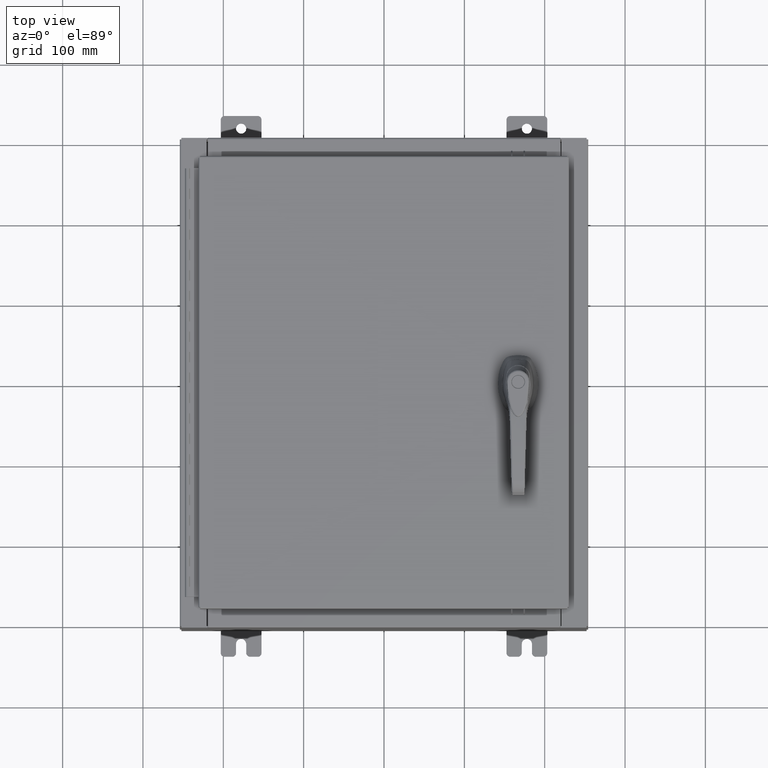
[diagram: clean part render]
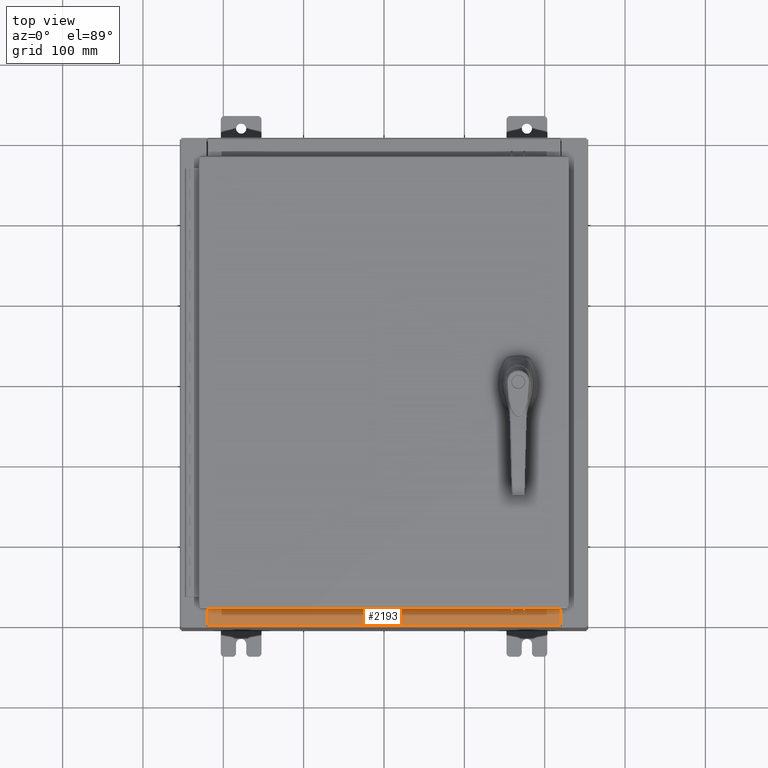
[diagram: same view with one face highlighted and labeled with its STEP entity id]
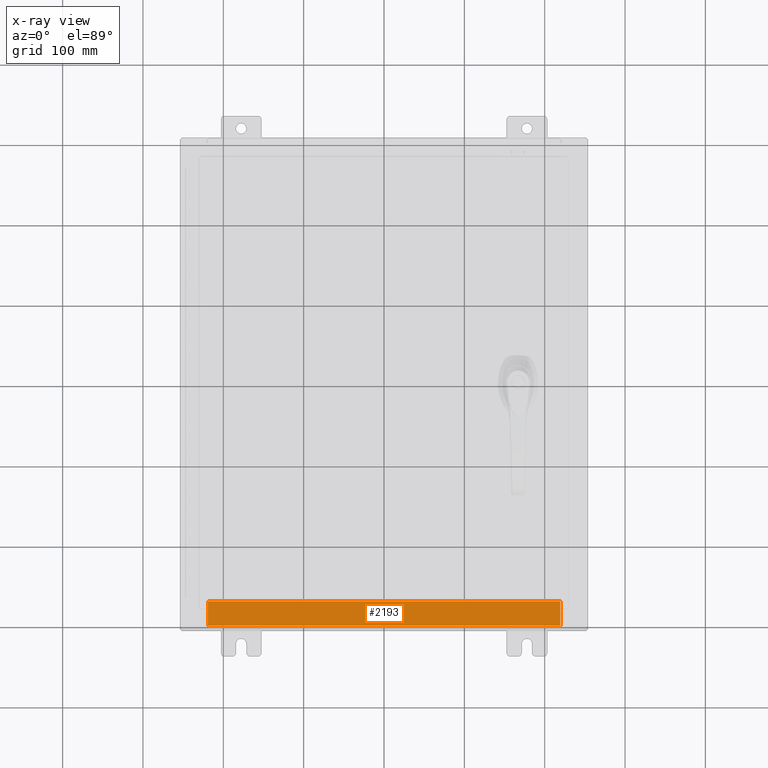
[diagram: x-ray of the same camera — body ghosted, the highlighted face saturated]
A machine part, top view. The second image highlights one B-rep face of the part: STEP entity #2193.
The next image is the same camera in x-ray: the body ghosted, the highlighted face saturated — about 0% of this face is hidden behind the body in this view.
In plain terms, the highlighted planar face has unit normal (-0, -0, 1).
Its self-contained STEP definition (entity closure, byte-faithful):
#2193 = ADVANCED_FACE ( 'NONE', ( #14156 ), #41509, .T. ) ;
#4620 = CARTESIAN_POINT ( 'NONE',  ( -8.637200000000000000, -1.287299999999999200, 5.000000000000004400 ) ) ;
#14156 = FACE_OUTER_BOUND ( 'NONE', #42042, .T. ) ;
#15783 = ORIENTED_EDGE ( 'NONE', *, *, #95202, .T. ) ;
#17223 = VECTOR ( 'NONE', #52349, 39.37007874015748100 ) ;
#18921 = DIRECTION ( 'NONE',  ( -1.000000000000000000, -6.325772226333218300E-017, 2.256011509776178200E-031 ) ) ;
#20551 = LINE ( 'NONE', #37777, #89696 ) ;
#21013 = LINE ( 'NONE', #89355, #67145 ) ;
#21321 = DIRECTION ( 'NONE',  ( 0.0000000000000000000, -1.000000000000000000, 3.566381192773190000E-015 ) ) ;
#26992 = VERTEX_POINT ( 'NONE', #4620 ) ;
#30184 = CARTESIAN_POINT ( 'NONE',  ( 8.637200000000000000, -1.287299999999999900, 5.000000000000004400 ) ) ;
#32846 = ORIENTED_EDGE ( 'NONE', *, *, #34948, .F. ) ;
#34948 = EDGE_CURVE ( 'NONE', #72053, #26992, #52084, .T. ) ;
#35041 = AXIS2_PLACEMENT_3D ( 'NONE', #58955, #85210, #21321 ) ;
#37777 = CARTESIAN_POINT ( 'NONE',  ( 8.637200000000000000, -1.300299999999999800, 5.000000000000004400 ) ) ;
#41509 = PLANE ( 'NONE',  #35041 ) ;
#42042 = EDGE_LOOP ( 'NONE', ( #70985, #32846, #84612, #15783 ) ) ;
#43615 = CARTESIAN_POINT ( 'NONE',  ( -8.637200000000000000, -0.07469999999999973900, 5.000000000000000000 ) ) ;
#51262 = CARTESIAN_POINT ( 'NONE',  ( -8.637200000000000000, -0.08770000000000081900, 5.000000000000000000 ) ) ;
#51555 = DIRECTION ( 'NONE',  ( -1.000000000000000000, 0.0000000000000000000, 0.0000000000000000000 ) ) ;
#52084 = LINE ( 'NONE', #103489, #98162 ) ;
#52349 = DIRECTION ( 'NONE',  ( -0.0000000000000000000, 1.000000000000000000, -3.566381192773190000E-015 ) ) ;
#55311 = EDGE_CURVE ( 'NONE', #75690, #72053, #20551, .T. ) ;
#58955 = CARTESIAN_POINT ( 'NONE',  ( 0.0000000000000000000, 1.782631094477737600E-014, 5.000000000000000000 ) ) ;
#67145 = VECTOR ( 'NONE', #18921, 39.37007874015748100 ) ;
#70985 = ORIENTED_EDGE ( 'NONE', *, *, #93013, .F. ) ;
#72053 = VERTEX_POINT ( 'NONE', #30184 ) ;
#75690 = VERTEX_POINT ( 'NONE', #87170 ) ;
#76424 = VERTEX_POINT ( 'NONE', #51262 ) ;
#84612 = ORIENTED_EDGE ( 'NONE', *, *, #55311, .F. ) ;
#85210 = DIRECTION ( 'NONE',  ( 0.0000000000000000000, 3.566381192773190000E-015, 1.000000000000000000 ) ) ;
#86380 = LINE ( 'NONE', #43615, #17223 ) ;
#87170 = CARTESIAN_POINT ( 'NONE',  ( 8.637200000000000000, -0.08770000000000047200, 5.000000000000000000 ) ) ;
#89355 = CARTESIAN_POINT ( 'NONE',  ( 5.547702242495411600E-018, -0.08770000000000081900, 5.000000000000000000 ) ) ;
#89696 = VECTOR ( 'NONE', #98419, 39.37007874015748100 ) ;
#93013 = EDGE_CURVE ( 'NONE', #26992, #76424, #86380, .T. ) ;
#95202 = EDGE_CURVE ( 'NONE', #75690, #76424, #21013, .T. ) ;
#98162 = VECTOR ( 'NONE', #51555, 39.37007874015748100 ) ;
#98419 = DIRECTION ( 'NONE',  ( -0.0000000000000000000, -1.000000000000000000, 3.566381192773190000E-015 ) ) ;
#103489 = CARTESIAN_POINT ( 'NONE',  ( 8.637200000000000000, -1.287299999999999900, 5.000000000000003600 ) ) ;